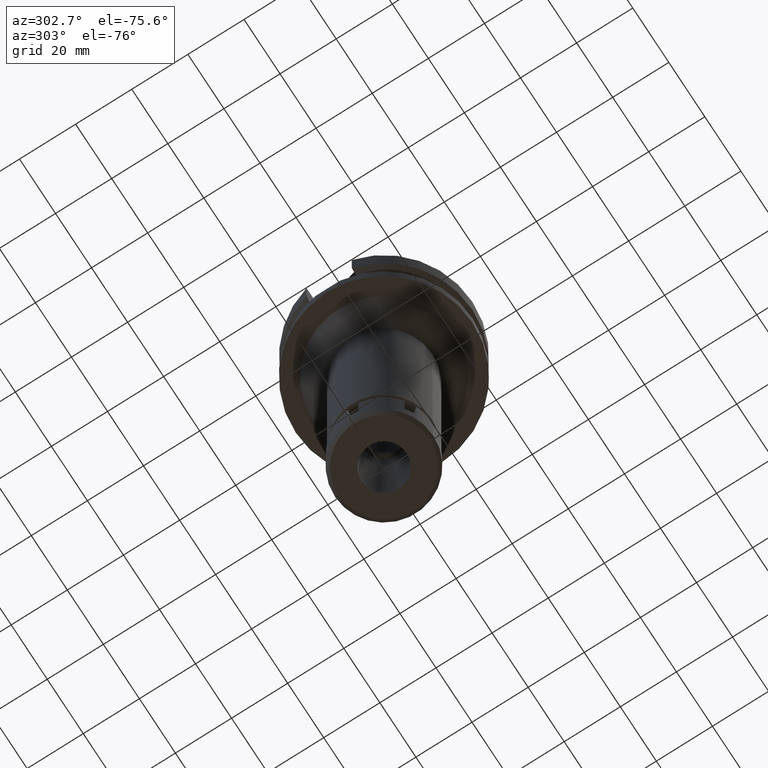
[diagram: clean part render]
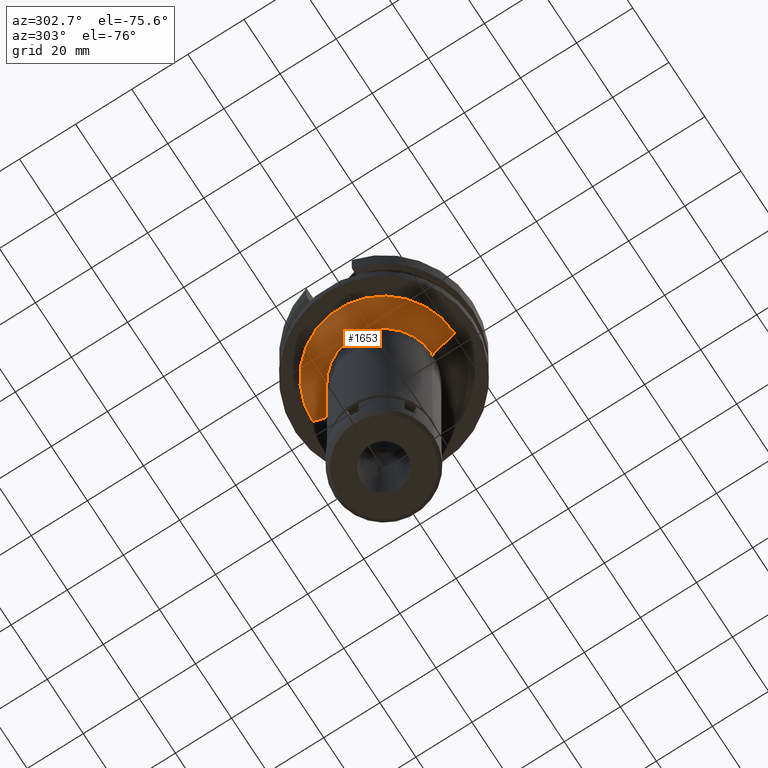
[diagram: same view with one face highlighted and labeled with its STEP entity id]
A machine part, auxiliary view. The second image highlights one B-rep face of the part: STEP entity #1653.
In plain terms, the highlighted conical surface has half-angle 45 deg.
Its self-contained STEP definition (entity closure, byte-faithful):
#29 = EDGE_CURVE ( 'NONE', #1415, #2799, #1662, .T. ) ;
#89 = DIRECTION ( 'NONE',  ( 0.0000000000000000000, -1.000000000000000000, 0.0000000000000000000 ) ) ;
#443 = VERTEX_POINT ( 'NONE', #3032 ) ;
#645 = FACE_OUTER_BOUND ( 'NONE', #3552, .T. ) ;
#705 = EDGE_CURVE ( 'NONE', #1415, #1198, #2326, .T. ) ;
#763 = VECTOR ( 'NONE', #869, 1000.000000000000114 ) ;
#782 = CIRCLE ( 'NONE', #3286, 17.25000000000000000 ) ;
#856 = LINE ( 'NONE', #3573, #2090 ) ;
#869 = DIRECTION ( 'NONE',  ( 0.0000000000000000000, 0.7071067811865474617, -0.7071067811865474617 ) ) ;
#883 = CARTESIAN_POINT ( 'NONE',  ( 0.0000000000000000000, 0.0000000000000000000, -35.00000000000000000 ) ) ;
#1079 = ORIENTED_EDGE ( 'NONE', *, *, #705, .T. ) ;
#1198 = VERTEX_POINT ( 'NONE', #1363 ) ;
#1361 = DIRECTION ( 'NONE',  ( 0.0000000000000000000, -0.7071067811865474617, -0.7071067811865474617 ) ) ;
#1363 = CARTESIAN_POINT ( 'NONE',  ( 0.0000000000000000000, 25.25000000000000000, -27.00000000000000000 ) ) ;
#1415 = VERTEX_POINT ( 'NONE', #1665 ) ;
#1526 = DIRECTION ( 'NONE',  ( 0.0000000000000000000, 0.0000000000000000000, -1.000000000000000000 ) ) ;
#1542 = CARTESIAN_POINT ( 'NONE',  ( 0.0000000000000000000, -17.25000000000000000, -35.00000000000000000 ) ) ;
#1653 = ADVANCED_FACE ( 'NONE', ( #645 ), #2926, .T. ) ;
#1662 = LINE ( 'NONE', #3332, #763 ) ;
#1665 = CARTESIAN_POINT ( 'NONE',  ( 0.0000000000000000000, -25.25000000000000000, -27.00000000000000000 ) ) ;
#1784 = DIRECTION ( 'NONE',  ( 0.0000000000000000000, 0.0000000000000000000, 1.000000000000000000 ) ) ;
#1845 = CARTESIAN_POINT ( 'NONE',  ( 0.0000000000000000000, 0.0000000000000000000, -27.00000000000000000 ) ) ;
#1928 = ORIENTED_EDGE ( 'NONE', *, *, #29, .F. ) ;
#2090 = VECTOR ( 'NONE', #1361, 1000.000000000000114 ) ;
#2293 = ORIENTED_EDGE ( 'NONE', *, *, #2604, .F. ) ;
#2311 = DIRECTION ( 'NONE',  ( 0.0000000000000000000, 1.000000000000000000, 0.0000000000000000000 ) ) ;
#2326 = CIRCLE ( 'NONE', #2979, 25.25000000000000000 ) ;
#2546 = DIRECTION ( 'NONE',  ( 0.0000000000000000000, 0.0000000000000000000, -1.000000000000000000 ) ) ;
#2604 = EDGE_CURVE ( 'NONE', #2799, #443, #782, .T. ) ;
#2743 = AXIS2_PLACEMENT_3D ( 'NONE', #3480, #1784, #2311 ) ;
#2799 = VERTEX_POINT ( 'NONE', #1542 ) ;
#2865 = DIRECTION ( 'NONE',  ( 0.0000000000000000000, -1.000000000000000000, 0.0000000000000000000 ) ) ;
#2926 = CONICAL_SURFACE ( 'NONE', #2743, 21.25000000000000000, 0.7853981633972997312 ) ;
#2979 = AXIS2_PLACEMENT_3D ( 'NONE', #1845, #1526, #89 ) ;
#3032 = CARTESIAN_POINT ( 'NONE',  ( 0.0000000000000000000, 17.25000000000000000, -35.00000000000000000 ) ) ;
#3036 = ORIENTED_EDGE ( 'NONE', *, *, #3585, .T. ) ;
#3286 = AXIS2_PLACEMENT_3D ( 'NONE', #883, #2546, #2865 ) ;
#3332 = CARTESIAN_POINT ( 'NONE',  ( 0.0000000000000000000, -25.25000000000000000, -27.00000000000000000 ) ) ;
#3480 = CARTESIAN_POINT ( 'NONE',  ( 0.0000000000000000000, 0.0000000000000000000, -31.00000000000000000 ) ) ;
#3552 = EDGE_LOOP ( 'NONE', ( #2293, #1928, #1079, #3036 ) ) ;
#3573 = CARTESIAN_POINT ( 'NONE',  ( 0.0000000000000000000, 25.25000000000000000, -27.00000000000000000 ) ) ;
#3585 = EDGE_CURVE ( 'NONE', #1198, #443, #856, .T. ) ;